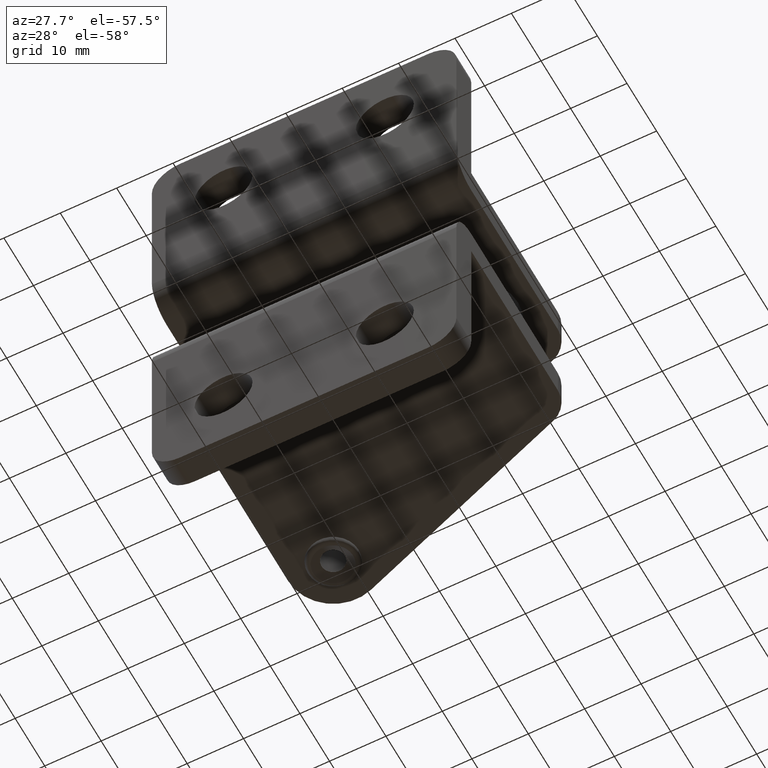
[diagram: clean part render]
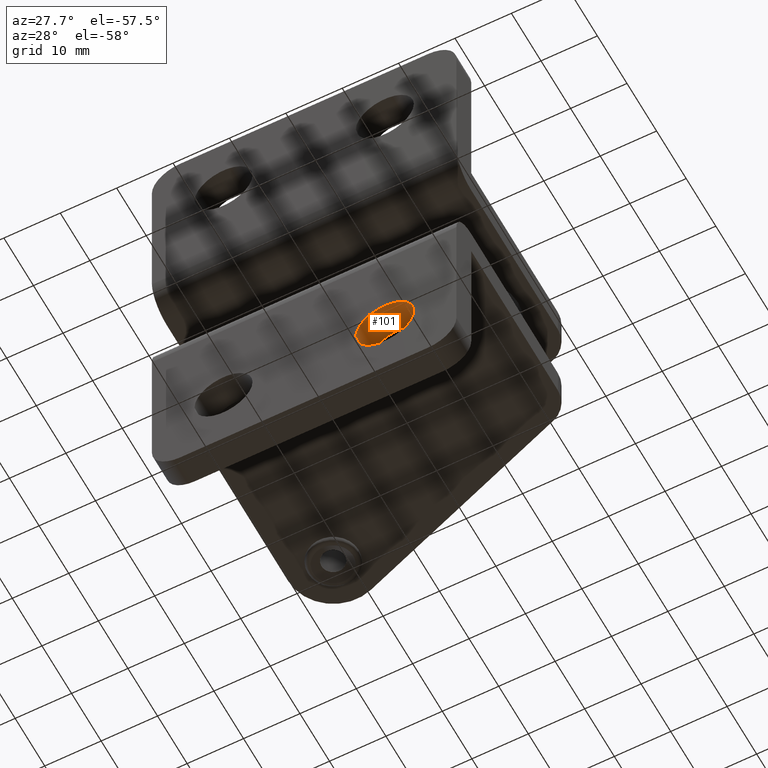
[diagram: same view with one face highlighted and labeled with its STEP entity id]
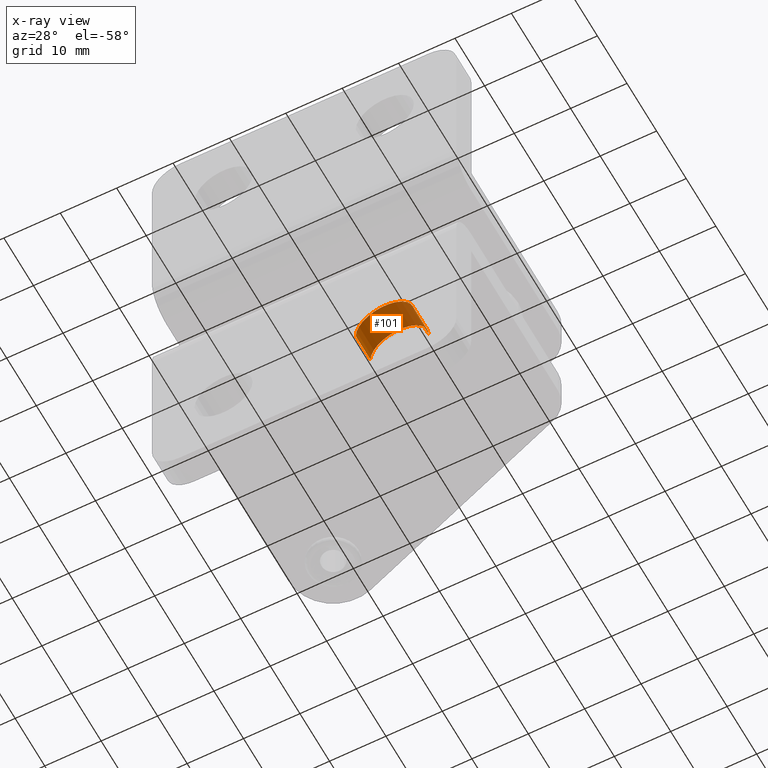
[diagram: x-ray of the same camera — body ghosted, the highlighted face saturated]
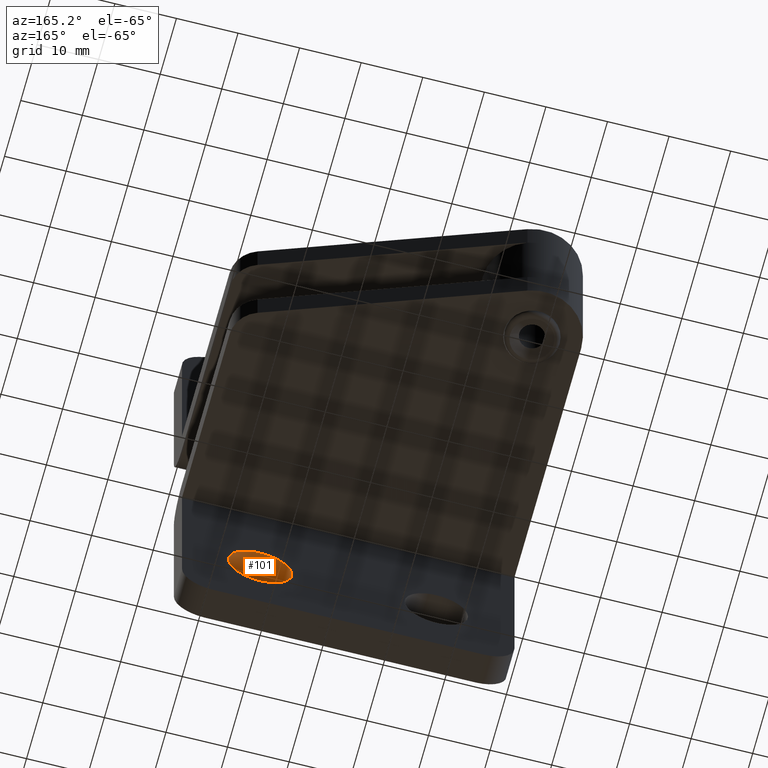
[diagram: same view with one face highlighted and labeled with its STEP entity id]
A machine part, auxiliary view. The second image highlights one B-rep face of the part: STEP entity #101.
The next image is the same camera in x-ray: the body ghosted, the highlighted face saturated — about 0% of this face is hidden behind the body in this view.
A second angle (auxiliary view) of the same face is appended — the face is thin or edge-on in the first view.
In plain terms, the highlighted cylindrical surface (edge-blend (fillet) strip) has radius 5.15 mm, axis along (0, 1, 0).
Its self-contained STEP definition (entity closure, byte-faithful):
#42 = DIRECTION ( 'NONE',  ( 0.0000000000000000000, -1.000000000000000000, -0.0000000000000000000 ) ) ;
#101 = ADVANCED_FACE ( 'NONE', ( #326 ), #348, .F. ) ;
#123 = DIRECTION ( 'NONE',  ( 1.000000000000000000, 0.0000000000000000000, 0.0000000000000000000 ) ) ;
#133 = AXIS2_PLACEMENT_3D ( 'NONE', #713, #42, #123 ) ;
#326 = FACE_OUTER_BOUND ( 'NONE', #1366, .T. ) ;
#348 = CYLINDRICAL_SURFACE ( 'NONE', #1168, 5.150000000000002100 ) ;
#416 = CARTESIAN_POINT ( 'NONE',  ( 36.15000000000036100, -5.854691731421723900E-014, -36.60000000000025000 ) ) ;
#427 = CIRCLE ( 'NONE', #1437, 5.150000000000002100 ) ;
#474 = VERTEX_POINT ( 'NONE', #1219 ) ;
#493 = CARTESIAN_POINT ( 'NONE',  ( 41.30000000000036700, -5.854691731421723900E-014, -36.60000000000025000 ) ) ;
#609 = EDGE_CURVE ( 'NONE', #1199, #1464, #427, .T. ) ;
#672 = DIRECTION ( 'NONE',  ( 1.000000000000000000, 0.0000000000000000000, 0.0000000000000000000 ) ) ;
#713 = CARTESIAN_POINT ( 'NONE',  ( 41.30000000000036700, 4.999999999999945800, -36.60000000000025000 ) ) ;
#744 = LINE ( 'NONE', #1507, #1850 ) ;
#805 = CARTESIAN_POINT ( 'NONE',  ( 46.45000000000036500, -49.00000000000005000, -36.60000000000025000 ) ) ;
#826 = VERTEX_POINT ( 'NONE', #1848 ) ;
#961 = DIRECTION ( 'NONE',  ( 0.0000000000000000000, 1.000000000000000000, 0.0000000000000000000 ) ) ;
#1013 = LINE ( 'NONE', #805, #1482 ) ;
#1049 = EDGE_CURVE ( 'NONE', #474, #826, #1815, .T. ) ;
#1075 = CARTESIAN_POINT ( 'NONE',  ( 46.45000000000036500, -5.854691731421723900E-014, -36.60000000000025000 ) ) ;
#1168 = AXIS2_PLACEMENT_3D ( 'NONE', #1670, #1852, #672 ) ;
#1199 = VERTEX_POINT ( 'NONE', #1075 ) ;
#1219 = CARTESIAN_POINT ( 'NONE',  ( 46.45000000000036500, 4.999999999999945800, -36.60000000000025000 ) ) ;
#1274 = EDGE_CURVE ( 'NONE', #1199, #474, #1013, .T. ) ;
#1366 = EDGE_LOOP ( 'NONE', ( #1776, #1677, #1395, #1558 ) ) ;
#1395 = ORIENTED_EDGE ( 'NONE', *, *, #1049, .F. ) ;
#1424 = DIRECTION ( 'NONE',  ( 0.0000000000000000000, -1.000000000000000000, -0.0000000000000000000 ) ) ;
#1437 = AXIS2_PLACEMENT_3D ( 'NONE', #493, #1424, #1481 ) ;
#1464 = VERTEX_POINT ( 'NONE', #416 ) ;
#1481 = DIRECTION ( 'NONE',  ( 1.000000000000000000, 0.0000000000000000000, 0.0000000000000000000 ) ) ;
#1482 = VECTOR ( 'NONE', #961, 1000.000000000000000 ) ;
#1507 = CARTESIAN_POINT ( 'NONE',  ( 36.15000000000036100, -49.00000000000005000, -36.60000000000025000 ) ) ;
#1523 = EDGE_CURVE ( 'NONE', #1464, #826, #744, .T. ) ;
#1558 = ORIENTED_EDGE ( 'NONE', *, *, #1274, .F. ) ;
#1670 = CARTESIAN_POINT ( 'NONE',  ( 41.30000000000036700, -49.00000000000005000, -36.60000000000025000 ) ) ;
#1677 = ORIENTED_EDGE ( 'NONE', *, *, #1523, .T. ) ;
#1776 = ORIENTED_EDGE ( 'NONE', *, *, #609, .T. ) ;
#1815 = CIRCLE ( 'NONE', #133, 5.150000000000002100 ) ;
#1848 = CARTESIAN_POINT ( 'NONE',  ( 36.15000000000036100, 4.999999999999945800, -36.60000000000025000 ) ) ;
#1850 = VECTOR ( 'NONE', #1865, 1000.000000000000000 ) ;
#1852 = DIRECTION ( 'NONE',  ( 0.0000000000000000000, 1.000000000000000000, 0.0000000000000000000 ) ) ;
#1865 = DIRECTION ( 'NONE',  ( 0.0000000000000000000, 1.000000000000000000, 0.0000000000000000000 ) ) ;